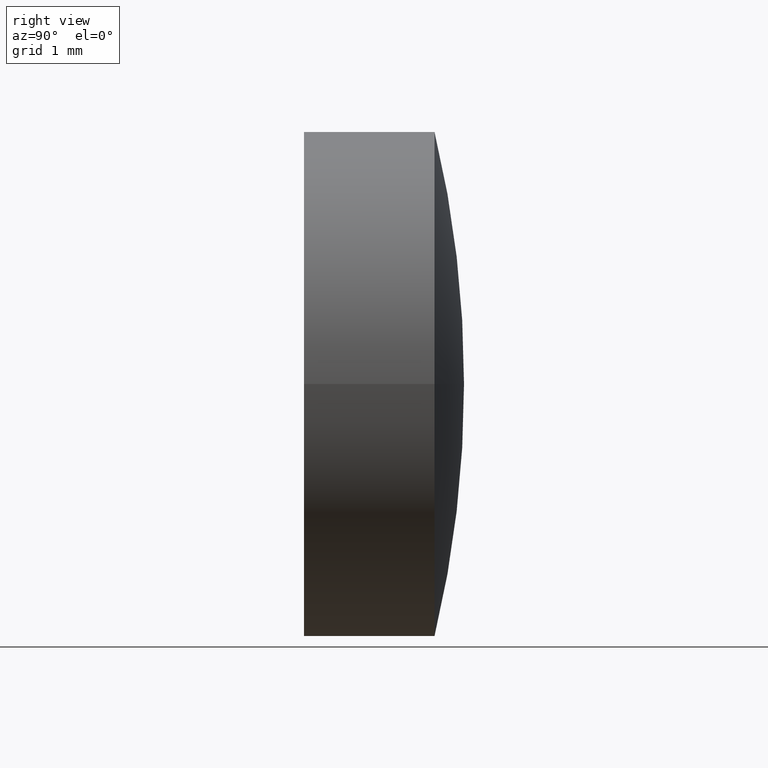
[diagram: clean part render]
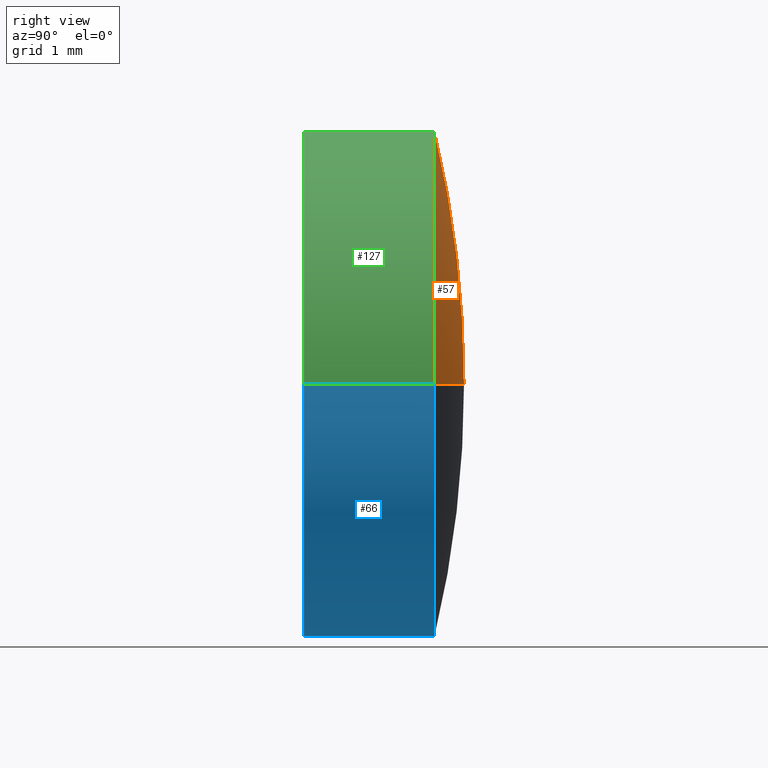
[diagram: same view with three faces highlighted in distinct colors, each labeled with its STEP entity id]
A machine part, right view with three faces highlighted in distinct colors.
Their STEP definitions:

[orange] entity #57 — the highlighted toroidal blend (fillet) surface has major radius 0.0143 mm and minor (blend) radius 12.91 mm.
#2 = CARTESIAN_POINT ( 'NONE',  ( 1.224646799147351420E-17, 1.899999999999999911, 0.000000000000000000 ) ) ;
#5 = CARTESIAN_POINT ( 'NONE',  ( 0.01425091764846829478, -11.00999213444168134, 1.745234068310931039E-18 ) ) ;
#10 = TOROIDAL_SURFACE ( 'NONE', #166, 0.01425091764846836591, 12.90999999999999837 ) ;
#13 = DIRECTION ( 'NONE',  ( 6.445509469196587961E-18, 1.000000000000000000, -0.000000000000000000 ) ) ;
#19 = AXIS2_PLACEMENT_3D ( 'NONE', #75, #120, #42 ) ;
#20 = CIRCLE ( 'NONE', #179, 12.90999999999999837 ) ;
#34 = EDGE_CURVE ( 'NONE', #131, #38, #20, .T. ) ;
#38 = VERTEX_POINT ( 'NONE', #2 ) ;
#42 = DIRECTION ( 'NONE',  ( -1.000000000000000000, 0.000000000000000000, 0.000000000000000000 ) ) ;
#43 = ORIENTED_EDGE ( 'NONE', *, *, #72, .T. ) ;
#51 = ORIENTED_EDGE ( 'NONE', *, *, #188, .F. ) ;
#57 = ADVANCED_FACE ( 'NONE', ( #78 ), #10, .T. ) ;
#58 = AXIS2_PLACEMENT_3D ( 'NONE', #101, #159, #170 ) ;
#65 = DIRECTION ( 'NONE',  ( -1.224646799147353207E-16, 7.893472540325556544E-34, 1.000000000000000000 ) ) ;
#72 = EDGE_CURVE ( 'NONE', #108, #131, #79, .T. ) ;
#75 = CARTESIAN_POINT ( 'NONE',  ( 9.990539677254705870E-18, 1.549999999999999600, 0.000000000000000000 ) ) ;
#76 = CIRCLE ( 'NONE', #58, 12.90999999999999837 ) ;
#78 = FACE_OUTER_BOUND ( 'NONE', #193, .T. ) ;
#79 = CIRCLE ( 'NONE', #19, 3.000000000000000000 ) ;
#86 = CARTESIAN_POINT ( 'NONE',  ( -7.115076756936122848E-17, -11.00999213444168134, 0.000000000000000000 ) ) ;
#100 = CARTESIAN_POINT ( 'NONE',  ( -3.000000000000004441, 1.549999999999999378, 0.000000000000000000 ) ) ;
#101 = CARTESIAN_POINT ( 'NONE',  ( -0.01425091764846843703, -11.00999213444168134, 0.000000000000000000 ) ) ;
#108 = VERTEX_POINT ( 'NONE', #100 ) ;
#111 = ORIENTED_EDGE ( 'NONE', *, *, #34, .T. ) ;
#120 = DIRECTION ( 'NONE',  ( 6.445509469196587961E-18, 1.000000000000000000, -0.000000000000000000 ) ) ;
#123 = DIRECTION ( 'NONE',  ( -1.000000000000000000, 6.445509469196587191E-18, 0.000000000000000000 ) ) ;
#131 = VERTEX_POINT ( 'NONE', #168 ) ;
#143 = DIRECTION ( 'NONE',  ( 1.000000000000000000, 0.000000000000000000, 1.224646799147353207E-16 ) ) ;
#159 = DIRECTION ( 'NONE',  ( -0.000000000000000000, 0.000000000000000000, -1.000000000000000000 ) ) ;
#166 = AXIS2_PLACEMENT_3D ( 'NONE', #86, #13, #123 ) ;
#168 = CARTESIAN_POINT ( 'NONE',  ( 3.000000000000004441, 1.549999999999999378, 3.673940397442064798E-16 ) ) ;
#170 = DIRECTION ( 'NONE',  ( -1.000000000000000000, 0.000000000000000000, 0.000000000000000000 ) ) ;
#179 = AXIS2_PLACEMENT_3D ( 'NONE', #5, #65, #143 ) ;
#188 = EDGE_CURVE ( 'NONE', #108, #38, #76, .T. ) ;
#193 = EDGE_LOOP ( 'NONE', ( #43, #111, #51 ) ) ;

[blue] entity #66 — the highlighted cylindrical surface (partial cylindrical patch) has radius 3 mm, axis along (0, 1, -0).
#4 = DIRECTION ( 'NONE',  ( -1.000000000000000000, 6.445509469196585650E-18, 0.000000000000000000 ) ) ;
#22 = EDGE_CURVE ( 'NONE', #118, #131, #201, .T. ) ;
#23 = CIRCLE ( 'NONE', #41, 3.000000000000000000 ) ;
#25 = VECTOR ( 'NONE', #60, 1000.000000000000000 ) ;
#27 = DIRECTION ( 'NONE',  ( 6.445509469196587961E-18, 1.000000000000000000, -0.000000000000000000 ) ) ;
#30 = CARTESIAN_POINT ( 'NONE',  ( 3.000000000000000000, -4.530173974017915390E-16, 3.673940397442059868E-16 ) ) ;
#32 = CIRCLE ( 'NONE', #138, 3.000000000000000000 ) ;
#40 = EDGE_LOOP ( 'NONE', ( #107, #46, #142, #164 ) ) ;
#41 = AXIS2_PLACEMENT_3D ( 'NONE', #62, #171, #4 ) ;
#46 = ORIENTED_EDGE ( 'NONE', *, *, #104, .T. ) ;
#60 = DIRECTION ( 'NONE',  ( 6.445509469196587961E-18, 1.000000000000000000, -0.000000000000000000 ) ) ;
#62 = CARTESIAN_POINT ( 'NONE',  ( -6.018531076210112041E-33, -4.336808689942017736E-16, 0.000000000000000000 ) ) ;
#66 = ADVANCED_FACE ( 'NONE', ( #181 ), #158, .T. ) ;
#87 = DIRECTION ( 'NONE',  ( -1.000000000000000000, 0.000000000000000000, 0.000000000000000000 ) ) ;
#88 = CARTESIAN_POINT ( 'NONE',  ( -3.000000000000000000, -4.143443405866120082E-16, 0.000000000000000000 ) ) ;
#89 = VECTOR ( 'NONE', #156, 1000.000000000000000 ) ;
#93 = VERTEX_POINT ( 'NONE', #88 ) ;
#100 = CARTESIAN_POINT ( 'NONE',  ( -3.000000000000004441, 1.549999999999999378, 0.000000000000000000 ) ) ;
#103 = CARTESIAN_POINT ( 'NONE',  ( 9.990539677254705870E-18, 1.549999999999999600, 0.000000000000000000 ) ) ;
#104 = EDGE_CURVE ( 'NONE', #118, #93, #23, .T. ) ;
#107 = ORIENTED_EDGE ( 'NONE', *, *, #22, .F. ) ;
#108 = VERTEX_POINT ( 'NONE', #100 ) ;
#109 = AXIS2_PLACEMENT_3D ( 'NONE', #190, #117, #187 ) ;
#117 = DIRECTION ( 'NONE',  ( 6.445509469196587961E-18, 1.000000000000000000, -0.000000000000000000 ) ) ;
#118 = VERTEX_POINT ( 'NONE', #30 ) ;
#119 = EDGE_CURVE ( 'NONE', #93, #108, #161, .T. ) ;
#131 = VERTEX_POINT ( 'NONE', #168 ) ;
#138 = AXIS2_PLACEMENT_3D ( 'NONE', #103, #27, #87 ) ;
#142 = ORIENTED_EDGE ( 'NONE', *, *, #119, .T. ) ;
#155 = EDGE_CURVE ( 'NONE', #131, #108, #32, .T. ) ;
#156 = DIRECTION ( 'NONE',  ( 6.445509469196587961E-18, 1.000000000000000000, -0.000000000000000000 ) ) ;
#158 = CYLINDRICAL_SURFACE ( 'NONE', #109, 3.000000000000000000 ) ;
#161 = LINE ( 'NONE', #185, #89 ) ;
#164 = ORIENTED_EDGE ( 'NONE', *, *, #155, .F. ) ;
#168 = CARTESIAN_POINT ( 'NONE',  ( 3.000000000000004441, 1.549999999999999378, 3.673940397442064798E-16 ) ) ;
#171 = DIRECTION ( 'NONE',  ( 6.445509469196587961E-18, 1.000000000000000000, -0.000000000000000000 ) ) ;
#180 = CARTESIAN_POINT ( 'NONE',  ( 3.000000000000000000, 1.899999999999999911, 3.673940397442059868E-16 ) ) ;
#181 = FACE_OUTER_BOUND ( 'NONE', #40, .T. ) ;
#185 = CARTESIAN_POINT ( 'NONE',  ( -3.000000000000000000, 1.899999999999999911, 0.000000000000000000 ) ) ;
#187 = DIRECTION ( 'NONE',  ( -1.000000000000000000, 0.000000000000000000, 0.000000000000000000 ) ) ;
#190 = CARTESIAN_POINT ( 'NONE',  ( 1.224646799147351420E-17, 1.899999999999999911, 0.000000000000000000 ) ) ;
#201 = LINE ( 'NONE', #180, #25 ) ;

[green] entity #127 — the highlighted cylindrical surface (partial cylindrical patch) has radius 3 mm, axis along (0, 1, -0).
#1 = DIRECTION ( 'NONE',  ( -1.000000000000000000, 0.000000000000000000, 0.000000000000000000 ) ) ;
#11 = ORIENTED_EDGE ( 'NONE', *, *, #196, .T. ) ;
#19 = AXIS2_PLACEMENT_3D ( 'NONE', #75, #120, #42 ) ;
#22 = EDGE_CURVE ( 'NONE', #118, #131, #201, .T. ) ;
#25 = VECTOR ( 'NONE', #60, 1000.000000000000000 ) ;
#30 = CARTESIAN_POINT ( 'NONE',  ( 3.000000000000000000, -4.530173974017915390E-16, 3.673940397442059868E-16 ) ) ;
#31 = DIRECTION ( 'NONE',  ( -1.000000000000000000, 6.445509469196585650E-18, 0.000000000000000000 ) ) ;
#33 = ORIENTED_EDGE ( 'NONE', *, *, #22, .T. ) ;
#42 = DIRECTION ( 'NONE',  ( -1.000000000000000000, 0.000000000000000000, 0.000000000000000000 ) ) ;
#45 = CARTESIAN_POINT ( 'NONE',  ( -6.018531076210112041E-33, -4.336808689942017736E-16, 0.000000000000000000 ) ) ;
#60 = DIRECTION ( 'NONE',  ( 6.445509469196587961E-18, 1.000000000000000000, -0.000000000000000000 ) ) ;
#64 = FACE_OUTER_BOUND ( 'NONE', #186, .T. ) ;
#72 = EDGE_CURVE ( 'NONE', #108, #131, #79, .T. ) ;
#75 = CARTESIAN_POINT ( 'NONE',  ( 9.990539677254705870E-18, 1.549999999999999600, 0.000000000000000000 ) ) ;
#79 = CIRCLE ( 'NONE', #19, 3.000000000000000000 ) ;
#88 = CARTESIAN_POINT ( 'NONE',  ( -3.000000000000000000, -4.143443405866120082E-16, 0.000000000000000000 ) ) ;
#89 = VECTOR ( 'NONE', #156, 1000.000000000000000 ) ;
#93 = VERTEX_POINT ( 'NONE', #88 ) ;
#100 = CARTESIAN_POINT ( 'NONE',  ( -3.000000000000004441, 1.549999999999999378, 0.000000000000000000 ) ) ;
#108 = VERTEX_POINT ( 'NONE', #100 ) ;
#113 = ORIENTED_EDGE ( 'NONE', *, *, #119, .F. ) ;
#118 = VERTEX_POINT ( 'NONE', #30 ) ;
#119 = EDGE_CURVE ( 'NONE', #93, #108, #161, .T. ) ;
#120 = DIRECTION ( 'NONE',  ( 6.445509469196587961E-18, 1.000000000000000000, -0.000000000000000000 ) ) ;
#122 = CYLINDRICAL_SURFACE ( 'NONE', #149, 3.000000000000000000 ) ;
#127 = ADVANCED_FACE ( 'NONE', ( #64 ), #122, .T. ) ;
#131 = VERTEX_POINT ( 'NONE', #168 ) ;
#139 = CARTESIAN_POINT ( 'NONE',  ( 1.224646799147351420E-17, 1.899999999999999911, 0.000000000000000000 ) ) ;
#145 = ORIENTED_EDGE ( 'NONE', *, *, #72, .F. ) ;
#146 = CIRCLE ( 'NONE', #163, 3.000000000000000000 ) ;
#149 = AXIS2_PLACEMENT_3D ( 'NONE', #139, #200, #1 ) ;
#156 = DIRECTION ( 'NONE',  ( 6.445509469196587961E-18, 1.000000000000000000, -0.000000000000000000 ) ) ;
#161 = LINE ( 'NONE', #185, #89 ) ;
#163 = AXIS2_PLACEMENT_3D ( 'NONE', #45, #172, #31 ) ;
#168 = CARTESIAN_POINT ( 'NONE',  ( 3.000000000000004441, 1.549999999999999378, 3.673940397442064798E-16 ) ) ;
#172 = DIRECTION ( 'NONE',  ( 6.445509469196587961E-18, 1.000000000000000000, -0.000000000000000000 ) ) ;
#180 = CARTESIAN_POINT ( 'NONE',  ( 3.000000000000000000, 1.899999999999999911, 3.673940397442059868E-16 ) ) ;
#185 = CARTESIAN_POINT ( 'NONE',  ( -3.000000000000000000, 1.899999999999999911, 0.000000000000000000 ) ) ;
#186 = EDGE_LOOP ( 'NONE', ( #11, #33, #145, #113 ) ) ;
#196 = EDGE_CURVE ( 'NONE', #93, #118, #146, .T. ) ;
#200 = DIRECTION ( 'NONE',  ( 6.445509469196587961E-18, 1.000000000000000000, -0.000000000000000000 ) ) ;
#201 = LINE ( 'NONE', #180, #25 ) ;